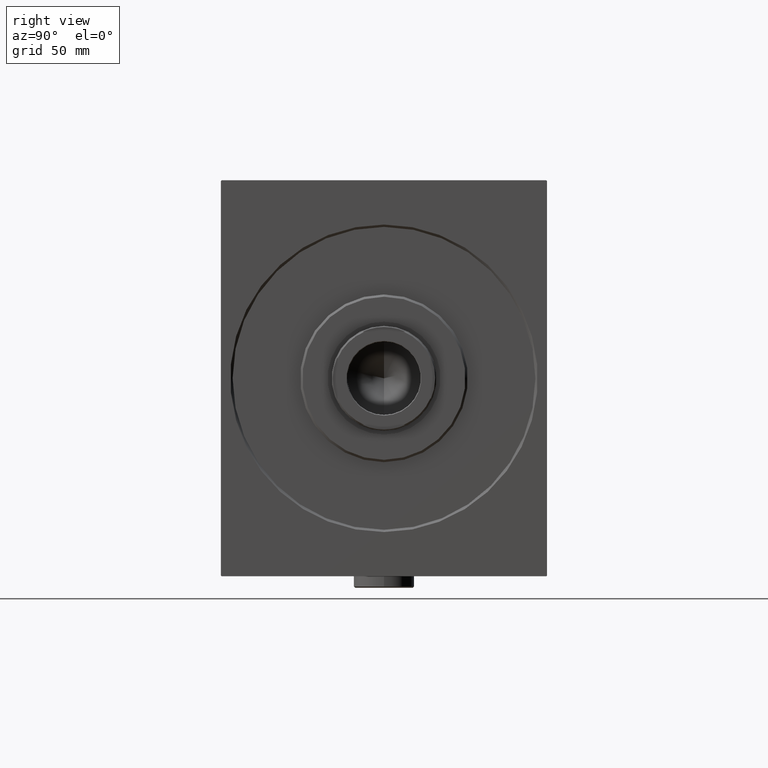
[diagram: clean part render]
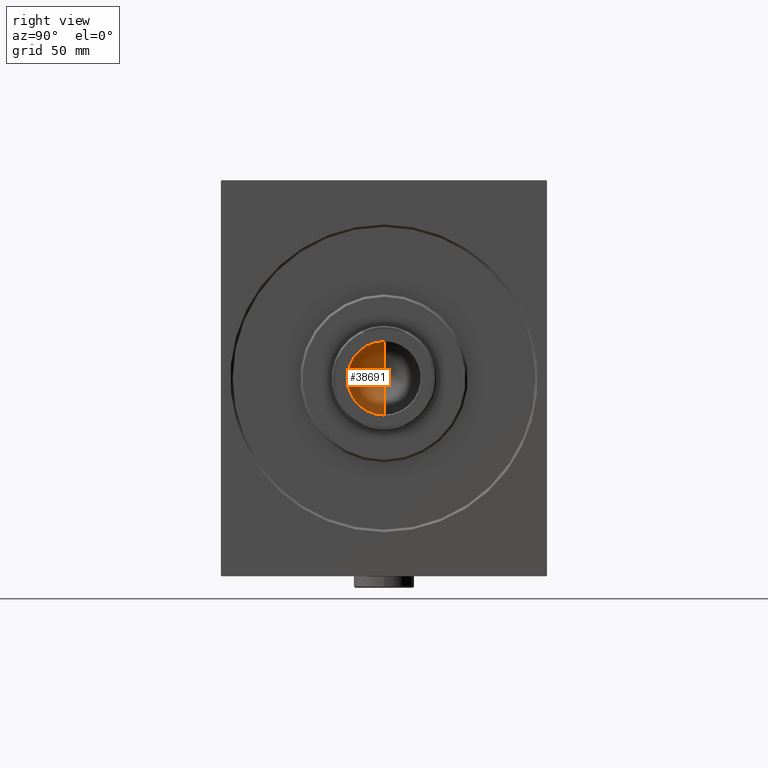
[diagram: same view with one face highlighted and labeled with its STEP entity id]
A machine part, right view. The second image highlights one B-rep face of the part: STEP entity #38691.
In plain terms, the highlighted conical surface has half-angle 59 deg.
Its self-contained STEP definition (entity closure, byte-faithful):
#1201 = VERTEX_POINT ( 'NONE', #28485 ) ;
#1410 = VECTOR ( 'NONE', #3154, 1000.000000000000000 ) ;
#3154 = DIRECTION ( 'NONE',  ( 0.8571673007021120005, 0.000000000000000000, 0.5150380749100547106 ) ) ;
#5429 = LINE ( 'NONE', #18882, #43481 ) ;
#5722 = CONICAL_SURFACE ( 'NONE', #11453, 15.74999999999999289, 1.029744258676653867 ) ;
#7845 = ORIENTED_EDGE ( 'NONE', *, *, #11057, .T. ) ;
#9231 = DIRECTION ( 'NONE',  ( -0.8571673007021120005, 1.049727191138618326E-16, 0.5150380749100547106 ) ) ;
#9564 = CIRCLE ( 'NONE', #10260, 15.74999999999999289 ) ;
#10260 = AXIS2_PLACEMENT_3D ( 'NONE', #11282, #38685, #17340 ) ;
#10677 = VERTEX_POINT ( 'NONE', #37613 ) ;
#10719 = CARTESIAN_POINT ( 'NONE',  ( 0.000000000000000000, 0.000000000000000000, 156.0000000000000000 ) ) ;
#11057 = EDGE_CURVE ( 'NONE', #1201, #41041, #9564, .T. ) ;
#11282 = CARTESIAN_POINT ( 'NONE',  ( 0.000000000000000000, 0.000000000000000000, 156.0000000000000000 ) ) ;
#11453 = AXIS2_PLACEMENT_3D ( 'NONE', #10719, #36999, #19926 ) ;
#14491 = ORIENTED_EDGE ( 'NONE', *, *, #34627, .F. ) ;
#17340 = DIRECTION ( 'NONE',  ( 1.000000000000000000, 0.000000000000000000, 0.000000000000000000 ) ) ;
#18882 = CARTESIAN_POINT ( 'NONE',  ( -15.74999999999999289, 1.928818708657080556E-15, 156.0000000000000000 ) ) ;
#19926 = DIRECTION ( 'NONE',  ( 1.000000000000000000, 0.000000000000000000, 0.000000000000000000 ) ) ;
#22800 = EDGE_CURVE ( 'NONE', #10677, #1201, #5429, .T. ) ;
#27163 = CARTESIAN_POINT ( 'NONE',  ( 15.74999999999999289, 0.000000000000000000, 156.0000000000000000 ) ) ;
#28485 = CARTESIAN_POINT ( 'NONE',  ( -15.74999999999999289, 1.928818708657080556E-15, 156.0000000000000000 ) ) ;
#30699 = FACE_OUTER_BOUND ( 'NONE', #38076, .T. ) ;
#33377 = CARTESIAN_POINT ( 'NONE',  ( 15.74999999999999289, 0.000000000000000000, 156.0000000000000000 ) ) ;
#33461 = LINE ( 'NONE', #27163, #1410 ) ;
#33849 = ORIENTED_EDGE ( 'NONE', *, *, #22800, .T. ) ;
#34627 = EDGE_CURVE ( 'NONE', #10677, #41041, #33461, .T. ) ;
#36999 = DIRECTION ( 'NONE',  ( -0.000000000000000000, -0.000000000000000000, 1.000000000000000000 ) ) ;
#37613 = CARTESIAN_POINT ( 'NONE',  ( -1.199718644317817648E-14, 0.000000000000000000, 146.5364452503159214 ) ) ;
#38076 = EDGE_LOOP ( 'NONE', ( #14491, #33849, #7845 ) ) ;
#38685 = DIRECTION ( 'NONE',  ( -0.000000000000000000, -0.000000000000000000, 1.000000000000000000 ) ) ;
#38691 = ADVANCED_FACE ( 'NONE', ( #30699 ), #5722, .F. ) ;
#41041 = VERTEX_POINT ( 'NONE', #33377 ) ;
#43481 = VECTOR ( 'NONE', #9231, 1000.000000000000000 ) ;